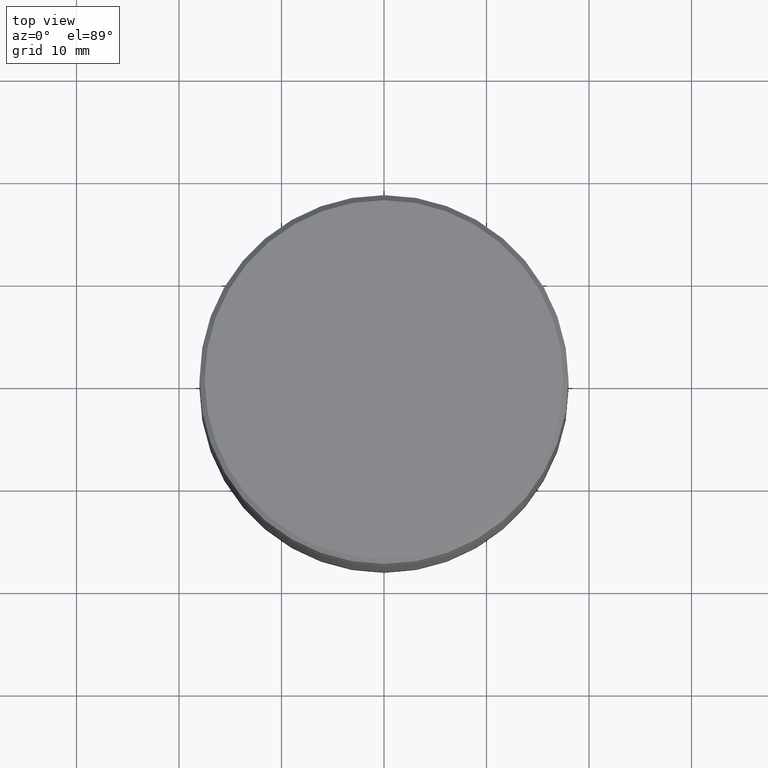
[diagram: clean part render]
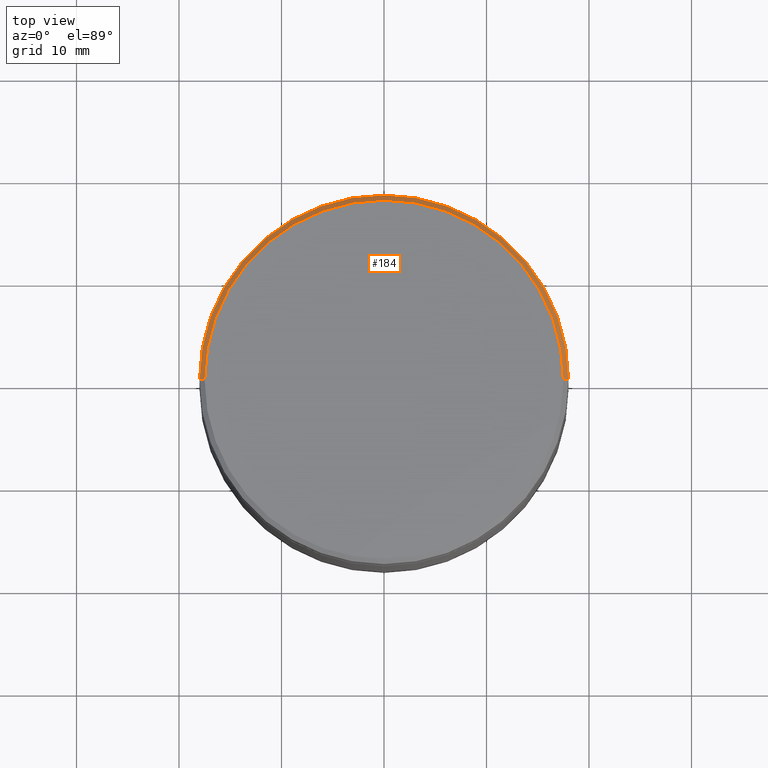
[diagram: same view with one face highlighted and labeled with its STEP entity id]
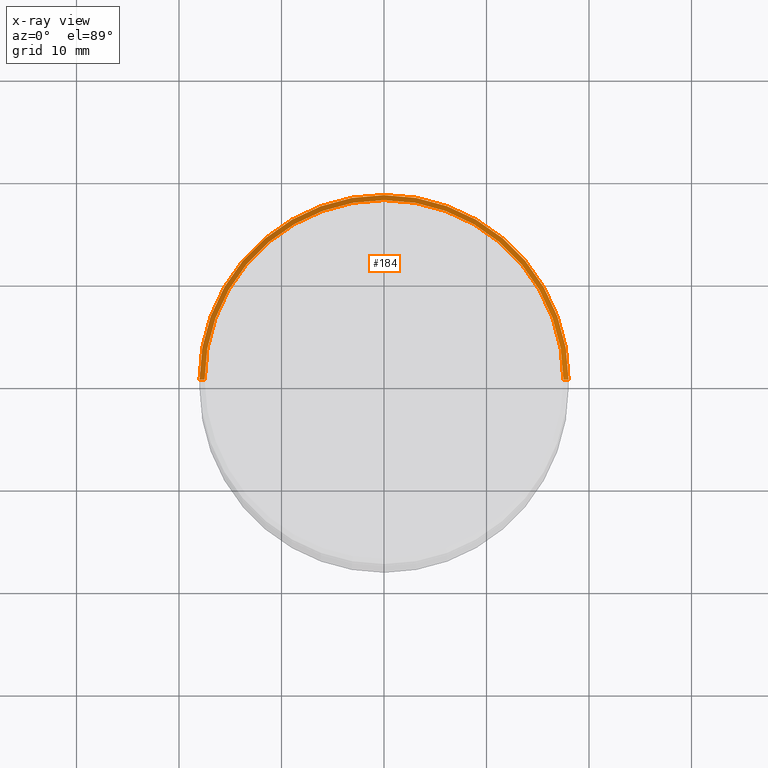
[diagram: x-ray of the same camera — body ghosted, the highlighted face saturated]
A machine part, top view. The second image highlights one B-rep face of the part: STEP entity #184.
The next image is the same camera in x-ray: the body ghosted, the highlighted face saturated — about 0% of this face is hidden behind the body in this view.
In plain terms, the highlighted conical surface has half-angle 45 deg.
Its self-contained STEP definition (entity closure, byte-faithful):
#10 = CARTESIAN_POINT ( 'NONE',  ( 0.000000000000000000, 0.000000000000000000, 0.000000000000000000 ) ) ;
#16 = ORIENTED_EDGE ( 'NONE', *, *, #459, .F. ) ;
#23 = CARTESIAN_POINT ( 'NONE',  ( 17.50000000000000000, 2.173748068486551641E-15, 0.000000000000000000 ) ) ;
#27 = ORIENTED_EDGE ( 'NONE', *, *, #378, .T. ) ;
#40 = VECTOR ( 'NONE', #531, 999.9999999999998863 ) ;
#53 = EDGE_CURVE ( 'NONE', #294, #68, #446, .T. ) ;
#56 = AXIS2_PLACEMENT_3D ( 'NONE', #275, #323, #363 ) ;
#64 = ORIENTED_EDGE ( 'NONE', *, *, #65, .F. ) ;
#65 = EDGE_CURVE ( 'NONE', #326, #294, #84, .T. ) ;
#68 = VERTEX_POINT ( 'NONE', #97 ) ;
#84 = CIRCLE ( 'NONE', #399, 17.50000000000000000 ) ;
#91 = LINE ( 'NONE', #183, #40 ) ;
#97 = CARTESIAN_POINT ( 'NONE',  ( -18.00000000000000000, 2.204364238465235428E-15, -0.5000000000000108802 ) ) ;
#111 = VECTOR ( 'NONE', #358, 999.9999999999998863 ) ;
#120 = EDGE_LOOP ( 'NONE', ( #64, #27, #16, #243 ) ) ;
#161 = FACE_OUTER_BOUND ( 'NONE', #120, .T. ) ;
#183 = CARTESIAN_POINT ( 'NONE',  ( 17.50000000000000000, 2.143131898507868248E-15, 0.000000000000000000 ) ) ;
#184 = ADVANCED_FACE ( 'NONE', ( #161 ), #185, .T. ) ;
#185 = CONICAL_SURFACE ( 'NONE', #309, 17.50000000000000000, 0.7853981633974344012 ) ;
#190 = DIRECTION ( 'NONE',  ( 1.000000000000000000, 0.000000000000000000, 0.000000000000000000 ) ) ;
#228 = DIRECTION ( 'NONE',  ( -1.000000000000000000, 0.000000000000000000, 0.000000000000000000 ) ) ;
#243 = ORIENTED_EDGE ( 'NONE', *, *, #53, .F. ) ;
#254 = CARTESIAN_POINT ( 'NONE',  ( 18.00000000000000000, 0.000000000000000000, -0.5000000000000108802 ) ) ;
#275 = CARTESIAN_POINT ( 'NONE',  ( 0.000000000000000000, 0.000000000000000000, -0.5000000000000108802 ) ) ;
#292 = CIRCLE ( 'NONE', #56, 18.00000000000000000 ) ;
#294 = VERTEX_POINT ( 'NONE', #332 ) ;
#309 = AXIS2_PLACEMENT_3D ( 'NONE', #334, #512, #228 ) ;
#323 = DIRECTION ( 'NONE',  ( 0.000000000000000000, 0.000000000000000000, -1.000000000000000000 ) ) ;
#326 = VERTEX_POINT ( 'NONE', #23 ) ;
#332 = CARTESIAN_POINT ( 'NONE',  ( -17.50000000000000000, 0.000000000000000000, 0.000000000000000000 ) ) ;
#334 = CARTESIAN_POINT ( 'NONE',  ( 0.000000000000000000, 0.000000000000000000, 0.000000000000000000 ) ) ;
#358 = DIRECTION ( 'NONE',  ( -0.7071067811865376918, 0.000000000000000000, -0.7071067811865574537 ) ) ;
#363 = DIRECTION ( 'NONE',  ( 1.000000000000000000, 0.000000000000000000, 0.000000000000000000 ) ) ;
#378 = EDGE_CURVE ( 'NONE', #326, #396, #91, .T. ) ;
#396 = VERTEX_POINT ( 'NONE', #254 ) ;
#397 = DIRECTION ( 'NONE',  ( -0.000000000000000000, -0.000000000000000000, 1.000000000000000000 ) ) ;
#399 = AXIS2_PLACEMENT_3D ( 'NONE', #10, #397, #190 ) ;
#401 = CARTESIAN_POINT ( 'NONE',  ( -17.50000000000000000, 0.000000000000000000, 0.000000000000000000 ) ) ;
#446 = LINE ( 'NONE', #401, #111 ) ;
#459 = EDGE_CURVE ( 'NONE', #68, #396, #292, .T. ) ;
#512 = DIRECTION ( 'NONE',  ( 0.000000000000000000, 0.000000000000000000, -1.000000000000000000 ) ) ;
#531 = DIRECTION ( 'NONE',  ( 0.7071067811865376918, 8.659560562354813296E-17, -0.7071067811865574537 ) ) ;